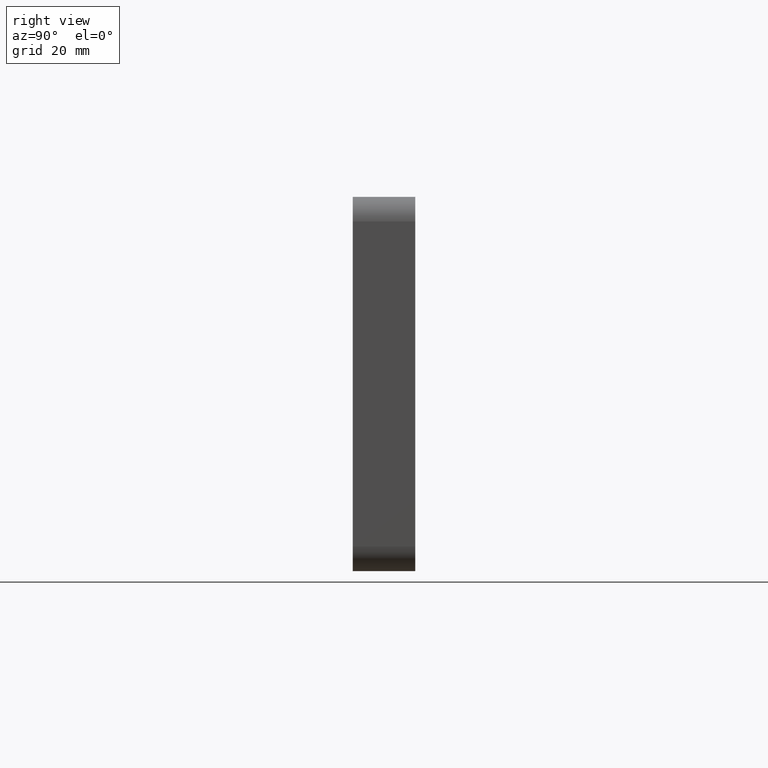
[diagram: clean part render]
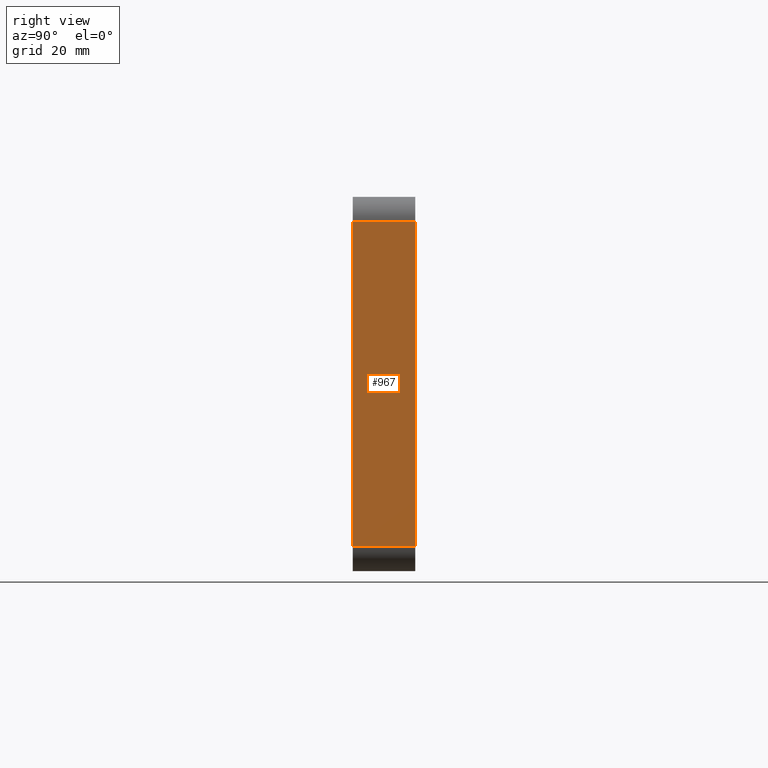
[diagram: same view with one face highlighted and labeled with its STEP entity id]
A machine part, right view. The second image highlights one B-rep face of the part: STEP entity #967.
In plain terms, the highlighted planar face has unit normal (-1, 0, 0).
Its self-contained STEP definition (entity closure, byte-faithful):
#2 = ORIENTED_EDGE ( 'NONE', *, *, #1634, .T. ) ;
#48 = VECTOR ( 'NONE', #1286, 1000.000000000000000 ) ;
#173 = EDGE_LOOP ( 'NONE', ( #2, #2050, #787, #891 ) ) ;
#190 = DIRECTION ( 'NONE',  ( 3.652049423109067300E-016, 0.0000000000000000000, 1.000000000000000000 ) ) ;
#198 = EDGE_CURVE ( 'NONE', #1493, #934, #948, .T. ) ;
#213 = CARTESIAN_POINT ( 'NONE',  ( 63.50000000000000000, -6.349999999999999600, -38.00000000000000000 ) ) ;
#223 = DIRECTION ( 'NONE',  ( -3.652049423109067800E-016, -0.0000000000000000000, -1.000000000000000000 ) ) ;
#341 = CARTESIAN_POINT ( 'NONE',  ( 63.50000000000002800, 6.349999999999999600, 33.00000000000000700 ) ) ;
#515 = CARTESIAN_POINT ( 'NONE',  ( 63.50000000000000000, 6.349999999999999600, -33.00000000000000000 ) ) ;
#555 = PLANE ( 'NONE',  #1379 ) ;
#564 = EDGE_CURVE ( 'NONE', #931, #934, #914, .T. ) ;
#677 = FACE_OUTER_BOUND ( 'NONE', #173, .T. ) ;
#757 = CARTESIAN_POINT ( 'NONE',  ( 63.50000000000002800, 6.349999999999999600, 33.00000000000000700 ) ) ;
#787 = ORIENTED_EDGE ( 'NONE', *, *, #564, .F. ) ;
#891 = ORIENTED_EDGE ( 'NONE', *, *, #968, .T. ) ;
#914 = LINE ( 'NONE', #2127, #1229 ) ;
#931 = VERTEX_POINT ( 'NONE', #757 ) ;
#934 = VERTEX_POINT ( 'NONE', #1137 ) ;
#948 = LINE ( 'NONE', #515, #48 ) ;
#967 = ADVANCED_FACE ( 'NONE', ( #677 ), #555, .F. ) ;
#968 = EDGE_CURVE ( 'NONE', #931, #1267, #1259, .T. ) ;
#994 = DIRECTION ( 'NONE',  ( -3.652049423109067800E-016, -0.0000000000000000000, -1.000000000000000000 ) ) ;
#1053 = CARTESIAN_POINT ( 'NONE',  ( 63.50000000000002800, -6.349999999999999600, 33.00000000000000700 ) ) ;
#1104 = CARTESIAN_POINT ( 'NONE',  ( 63.50000000000000000, -6.349999999999999600, -33.00000000000000000 ) ) ;
#1137 = CARTESIAN_POINT ( 'NONE',  ( 63.50000000000000000, 6.349999999999999600, -33.00000000000000000 ) ) ;
#1229 = VECTOR ( 'NONE', #994, 1000.000000000000000 ) ;
#1259 = LINE ( 'NONE', #341, #1659 ) ;
#1267 = VERTEX_POINT ( 'NONE', #1053 ) ;
#1286 = DIRECTION ( 'NONE',  ( -0.0000000000000000000, 1.000000000000000000, -0.0000000000000000000 ) ) ;
#1379 = AXIS2_PLACEMENT_3D ( 'NONE', #1882, #2456, #190 ) ;
#1431 = VECTOR ( 'NONE', #223, 1000.000000000000000 ) ;
#1493 = VERTEX_POINT ( 'NONE', #1104 ) ;
#1634 = EDGE_CURVE ( 'NONE', #1267, #1493, #2100, .T. ) ;
#1659 = VECTOR ( 'NONE', #1667, 1000.000000000000000 ) ;
#1667 = DIRECTION ( 'NONE',  ( 0.0000000000000000000, -1.000000000000000000, 0.0000000000000000000 ) ) ;
#1882 = CARTESIAN_POINT ( 'NONE',  ( 63.50000000000000000, 6.349999999999999600, -38.00000000000000000 ) ) ;
#2050 = ORIENTED_EDGE ( 'NONE', *, *, #198, .T. ) ;
#2100 = LINE ( 'NONE', #213, #1431 ) ;
#2127 = CARTESIAN_POINT ( 'NONE',  ( 63.50000000000000000, 6.349999999999999600, -38.00000000000000000 ) ) ;
#2456 = DIRECTION ( 'NONE',  ( -1.000000000000000000, 0.0000000000000000000, 3.652049423109067300E-016 ) ) ;